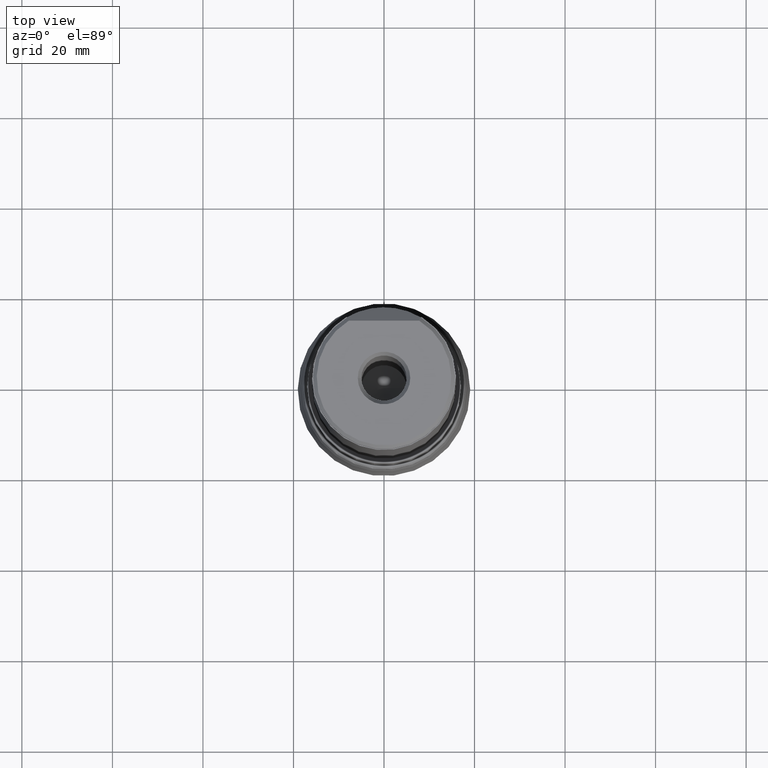
[diagram: clean part render]
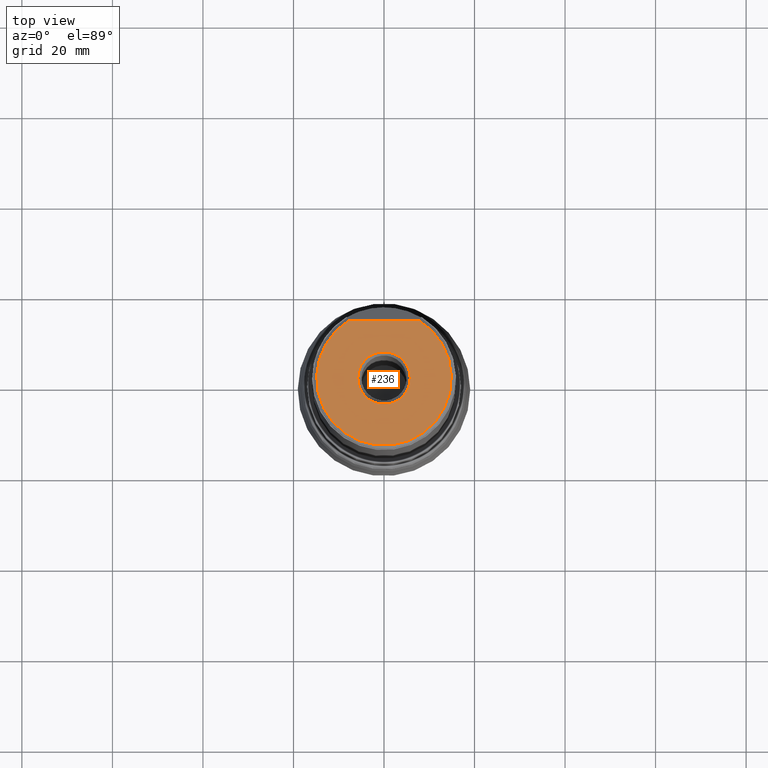
[diagram: same view with one face highlighted and labeled with its STEP entity id]
A machine part, top view. The second image highlights one B-rep face of the part: STEP entity #236.
In plain terms, the highlighted planar face has unit normal (0, 0, -1).
Its self-contained STEP definition (entity closure, byte-faithful):
#120=PLANE('',#916);
#157=LINE('',#1376,#177);
#177=VECTOR('',#1042,1.);
#236=ADVANCED_FACE('',(#403,#404),#120,.F.);
#403=FACE_BOUND('',#501,.T.);
#404=FACE_BOUND('',#502,.T.);
#501=EDGE_LOOP('',(#630,#631));
#502=EDGE_LOOP('',(#632));
#630=ORIENTED_EDGE('',*,*,#776,.T.);
#631=ORIENTED_EDGE('',*,*,#774,.T.);
#632=ORIENTED_EDGE('',*,*,#801,.T.);
#707=VERTEX_POINT('',#1367);
#710=VERTEX_POINT('',#1375);
#728=VERTEX_POINT('',#1503);
#774=EDGE_CURVE('',#707,#710,#157,.T.);
#776=EDGE_CURVE('',#710,#707,#845,.T.);
#801=EDGE_CURVE('',#728,#728,#847,.T.);
#845=CIRCLE('',#895,14.875);
#847=CIRCLE('',#909,5.8);
#895=AXIS2_PLACEMENT_3D('',#1379,#1047,#1048);
#909=AXIS2_PLACEMENT_3D('',#1502,#1089,#1090);
#916=AXIS2_PLACEMENT_3D('',#1513,#1103,#1104);
#1042=DIRECTION('',(-1.,6.62951273314672E-17,0.));
#1047=DIRECTION('',(0.,0.,1.));
#1048=DIRECTION('',(-1.,0.,0.));
#1089=DIRECTION('',(0.,0.,-1.));
#1090=DIRECTION('',(-1.,0.,0.));
#1103=DIRECTION('',(0.,0.,-1.));
#1104=DIRECTION('',(-1.,0.,0.));
#1367=CARTESIAN_POINT('',(7.76501810944445,12.6874,152.4));
#1375=CARTESIAN_POINT('',(-7.76501810944445,12.6874,152.4));
#1376=CARTESIAN_POINT('',(-7.98721893026604,12.6874,152.4));
#1379=CARTESIAN_POINT('',(0.,0.,152.4));
#1502=CARTESIAN_POINT('',(0.,0.,152.4));
#1503=CARTESIAN_POINT('',(-5.8,0.,152.4));
#1513=CARTESIAN_POINT('',(0.,0.,152.4));